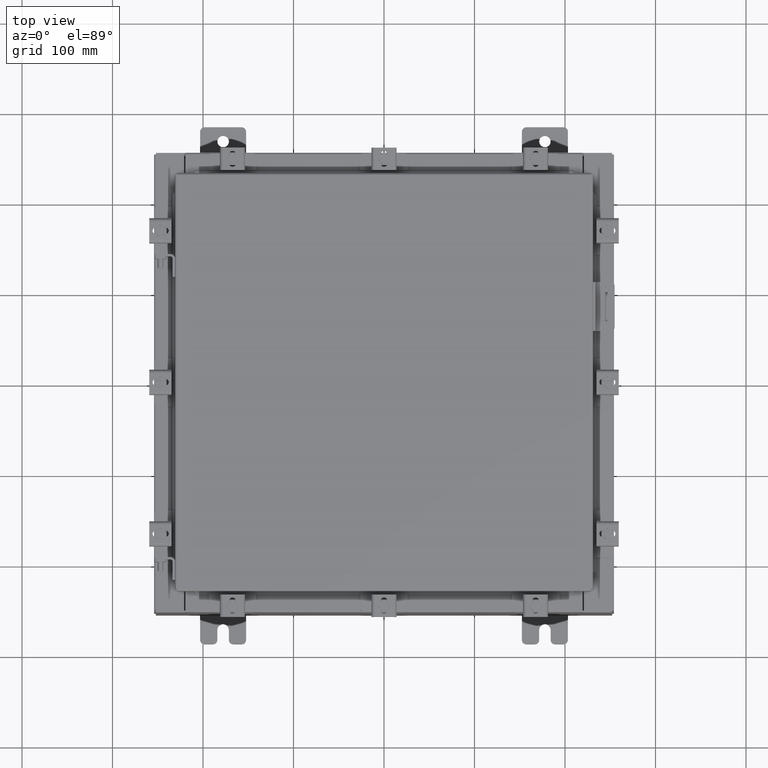
[diagram: clean part render]
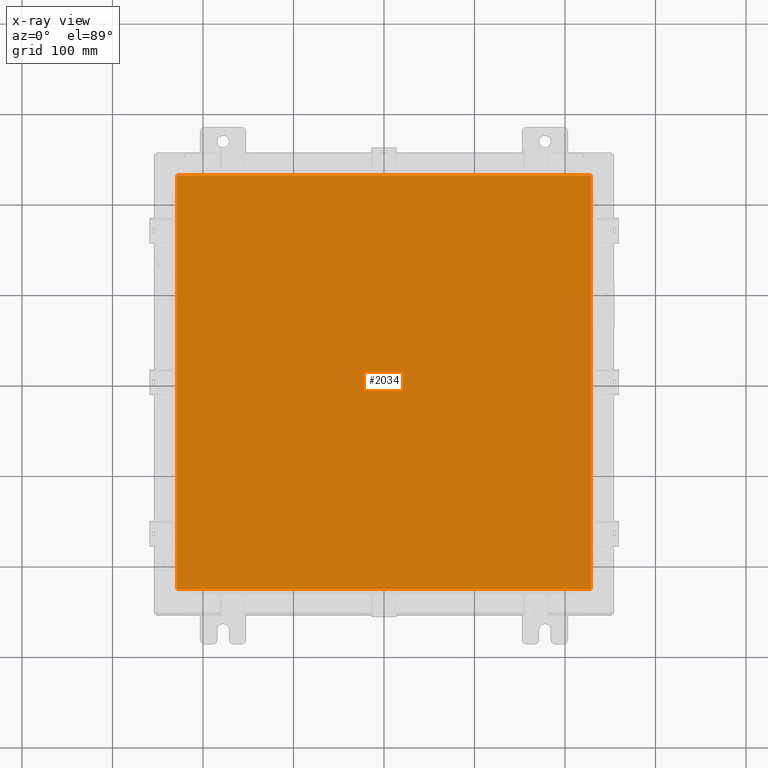
[diagram: x-ray — body ghosted, one internal face saturated and labeled with its STEP entity id]
A machine part, top view, then the same camera in x-ray: the body is ghosted and one INTERNAL B-rep face — a face not visible from any outside direction — is saturated and labeled: STEP entity #2034.
In plain terms, the highlighted planar face has unit normal (0, 0, -1).
Its self-contained STEP definition (entity closure, byte-faithful):
#1729 = DIRECTION ( 'NONE',  ( 0.0000000000000000000, -1.000000000000000000, 0.0000000000000000000 ) ) ;
#1770 = CARTESIAN_POINT ( 'NONE',  ( 9.006300000000001300, 9.006299999999999500, -0.07470000000000015500 ) ) ;
#2034 = ADVANCED_FACE ( 'NONE', ( #18729 ), #10716, .T. ) ;
#2035 = DIRECTION ( 'NONE',  ( 0.0000000000000000000, 0.0000000000000000000, -1.000000000000000000 ) ) ;
#2773 = EDGE_LOOP ( 'NONE', ( #19647, #20506, #9904, #17108 ) ) ;
#3167 = CARTESIAN_POINT ( 'NONE',  ( 9.006300000000001300, -9.006299999999999500, -0.07470000000000015500 ) ) ;
#3238 = DIRECTION ( 'NONE',  ( 0.0000000000000000000, 1.000000000000000000, 0.0000000000000000000 ) ) ;
#3363 = VECTOR ( 'NONE', #1729, 39.37007874015748100 ) ;
#3478 = CARTESIAN_POINT ( 'NONE',  ( 0.0000000000000000000, 0.0000000000000000000, -0.07470000000000015500 ) ) ;
#4164 = VECTOR ( 'NONE', #13971, 39.37007874015748100 ) ;
#4239 = AXIS2_PLACEMENT_3D ( 'NONE', #3478, #2035, #18692 ) ;
#5358 = CARTESIAN_POINT ( 'NONE',  ( -9.006299999999997800, 9.006299999999997800, -0.07470000000000015500 ) ) ;
#5535 = VECTOR ( 'NONE', #3238, 39.37007874015748100 ) ;
#5788 = VERTEX_POINT ( 'NONE', #11683 ) ;
#7048 = CARTESIAN_POINT ( 'NONE',  ( -9.006299999999997800, 9.006299999999999500, -0.07470000000000125200 ) ) ;
#7257 = CARTESIAN_POINT ( 'NONE',  ( -9.006299999999997800, -9.006299999999999500, -0.07470000000000015500 ) ) ;
#8317 = VECTOR ( 'NONE', #10903, 39.37007874015748100 ) ;
#9178 = EDGE_CURVE ( 'NONE', #5788, #12380, #10166, .T. ) ;
#9362 = EDGE_CURVE ( 'NONE', #10611, #16487, #22443, .T. ) ;
#9904 = ORIENTED_EDGE ( 'NONE', *, *, #9362, .F. ) ;
#9928 = EDGE_CURVE ( 'NONE', #12380, #10611, #17039, .T. ) ;
#10166 = LINE ( 'NONE', #3167, #5535 ) ;
#10611 = VERTEX_POINT ( 'NONE', #5358 ) ;
#10716 = PLANE ( 'NONE',  #4239 ) ;
#10903 = DIRECTION ( 'NONE',  ( 1.000000000000000000, -0.0000000000000000000, -0.0000000000000000000 ) ) ;
#11683 = CARTESIAN_POINT ( 'NONE',  ( 9.006300000000001300, -9.006299999999999500, -0.07470000000000015500 ) ) ;
#12380 = VERTEX_POINT ( 'NONE', #16539 ) ;
#13971 = DIRECTION ( 'NONE',  ( -1.000000000000000000, -0.0000000000000000000, -0.0000000000000000000 ) ) ;
#16487 = VERTEX_POINT ( 'NONE', #7257 ) ;
#16539 = CARTESIAN_POINT ( 'NONE',  ( 9.006299999999999500, 9.006299999999999500, -0.07470000000000015500 ) ) ;
#17039 = LINE ( 'NONE', #1770, #4164 ) ;
#17108 = ORIENTED_EDGE ( 'NONE', *, *, #9928, .F. ) ;
#18113 = LINE ( 'NONE', #21440, #8317 ) ;
#18430 = EDGE_CURVE ( 'NONE', #16487, #5788, #18113, .T. ) ;
#18692 = DIRECTION ( 'NONE',  ( -1.000000000000000000, 0.0000000000000000000, -0.0000000000000000000 ) ) ;
#18729 = FACE_OUTER_BOUND ( 'NONE', #2773, .T. ) ;
#19647 = ORIENTED_EDGE ( 'NONE', *, *, #9178, .F. ) ;
#20506 = ORIENTED_EDGE ( 'NONE', *, *, #18430, .F. ) ;
#21440 = CARTESIAN_POINT ( 'NONE',  ( -9.006299999999997800, -9.006299999999999500, -0.07470000000000015500 ) ) ;
#22443 = LINE ( 'NONE', #7048, #3363 ) ;